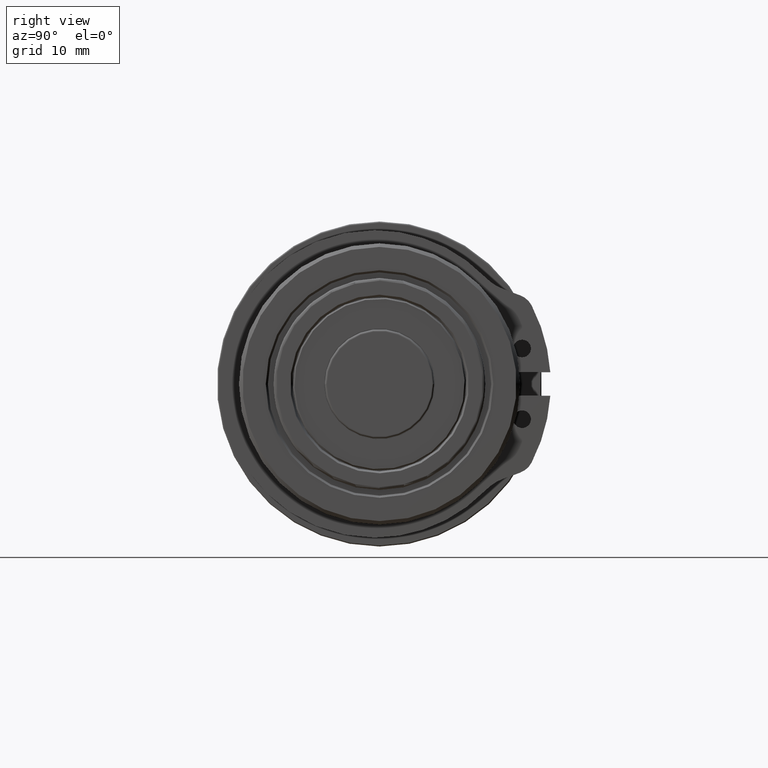
[diagram: clean part render]
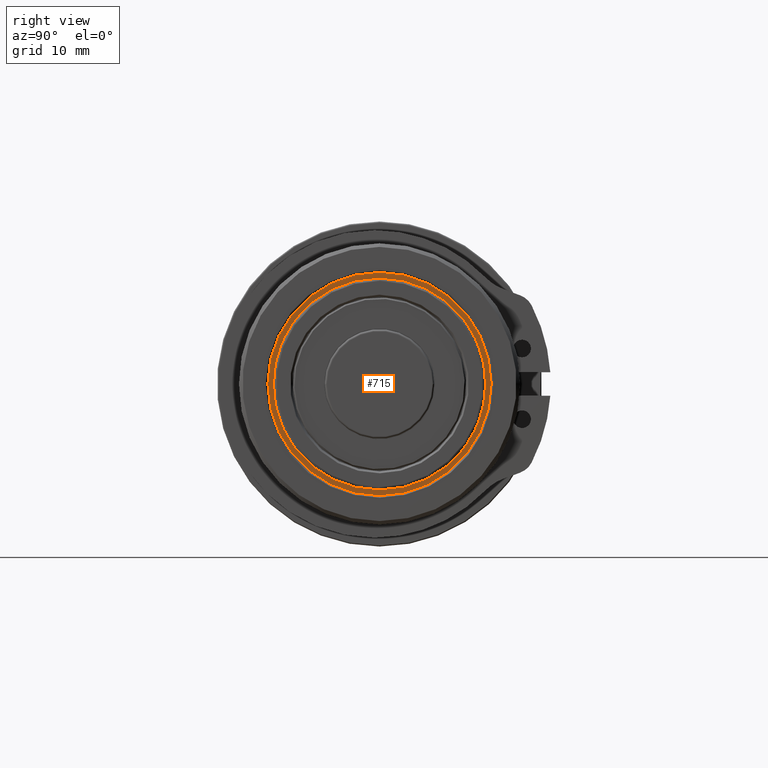
[diagram: same view with one face highlighted and labeled with its STEP entity id]
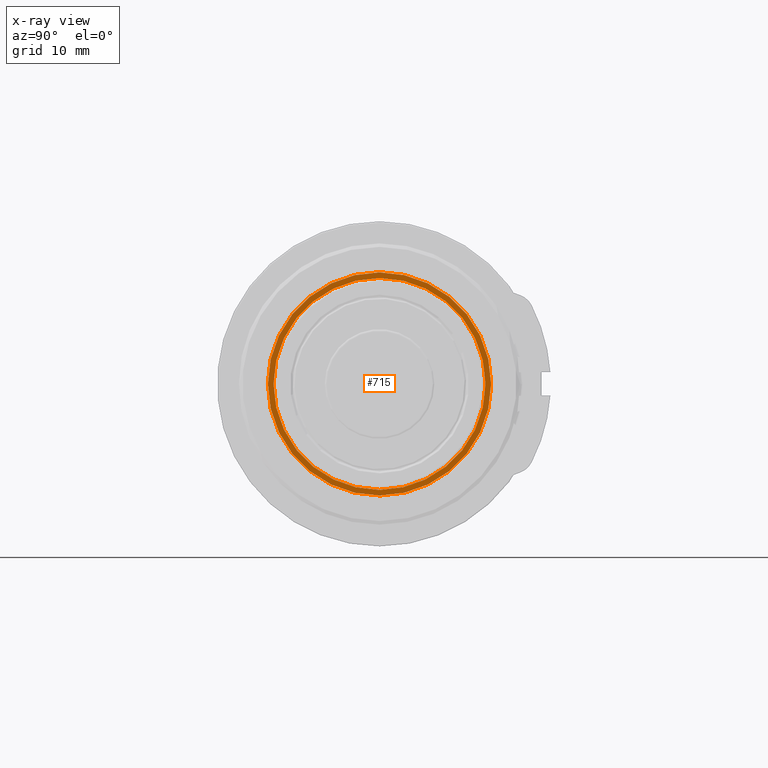
[diagram: x-ray of the same camera — body ghosted, the highlighted face saturated]
A machine part, right view. The second image highlights one B-rep face of the part: STEP entity #715.
The next image is the same camera in x-ray: the body ghosted, the highlighted face saturated — about 0% of this face is hidden behind the body in this view.
In plain terms, the highlighted planar face has unit normal (-1, 0, -0).
Its self-contained STEP definition (entity closure, byte-faithful):
#33 = PLANE ( 'NONE',  #2821 ) ;
#112 = CARTESIAN_POINT ( 'NONE',  ( 51.79999999999999700, 18.06138526289621600, 0.0000000000000000000 ) ) ;
#249 = DIRECTION ( 'NONE',  ( -0.0000000000000000000, 0.0000000000000000000, 1.000000000000000000 ) ) ;
#286 = DIRECTION ( 'NONE',  ( -1.000000000000000000, 0.0000000000000000000, -0.0000000000000000000 ) ) ;
#353 = EDGE_LOOP ( 'NONE', ( #1132, #1195 ) ) ;
#605 = EDGE_LOOP ( 'NONE', ( #1136, #1297 ) ) ;
#715 = ADVANCED_FACE ( 'NONE', ( #3314, #3170 ), #33, .F. ) ;
#909 = VERTEX_POINT ( 'NONE', #4328 ) ;
#928 = VERTEX_POINT ( 'NONE', #3997 ) ;
#953 = VERTEX_POINT ( 'NONE', #4007 ) ;
#961 = VERTEX_POINT ( 'NONE', #4023 ) ;
#1132 = ORIENTED_EDGE ( 'NONE', *, *, #2139, .F. ) ;
#1136 = ORIENTED_EDGE ( 'NONE', *, *, #2001, .F. ) ;
#1195 = ORIENTED_EDGE ( 'NONE', *, *, #1993, .F. ) ;
#1297 = ORIENTED_EDGE ( 'NONE', *, *, #2075, .F. ) ;
#1510 = DIRECTION ( 'NONE',  ( -1.000000000000000000, -0.0000000000000000000, -0.0000000000000000000 ) ) ;
#1519 = DIRECTION ( 'NONE',  ( 1.000000000000000000, 0.0000000000000000000, 0.0000000000000000000 ) ) ;
#1536 = CARTESIAN_POINT ( 'NONE',  ( 51.79999999999999700, 4.470713197007353100E-016, 2.582013848347336000E-015 ) ) ;
#1553 = DIRECTION ( 'NONE',  ( 0.0000000000000000000, 0.0000000000000000000, 1.000000000000000000 ) ) ;
#1569 = CARTESIAN_POINT ( 'NONE',  ( 51.79999999999999700, 0.0000000000000000000, 0.0000000000000000000 ) ) ;
#1692 = DIRECTION ( 'NONE',  ( 0.0000000000000000000, 0.0000000000000000000, 1.000000000000000000 ) ) ;
#1786 = CIRCLE ( 'NONE', #2916, 15.80000000000000100 ) ;
#1803 = CIRCLE ( 'NONE', #2650, 14.99999999999998900 ) ;
#1993 = EDGE_CURVE ( 'NONE', #928, #961, #3064, .T. ) ;
#2001 = EDGE_CURVE ( 'NONE', #953, #909, #3125, .T. ) ;
#2075 = EDGE_CURVE ( 'NONE', #909, #953, #1786, .T. ) ;
#2139 = EDGE_CURVE ( 'NONE', #961, #928, #1803, .T. ) ;
#2327 = CARTESIAN_POINT ( 'NONE',  ( 51.79999999999999700, 4.470713197007353100E-016, 2.582013848347336000E-015 ) ) ;
#2402 = DIRECTION ( 'NONE',  ( -1.000000000000000000, -0.0000000000000000000, -0.0000000000000000000 ) ) ;
#2479 = CARTESIAN_POINT ( 'NONE',  ( 51.79999999999999700, 0.0000000000000000000, 0.0000000000000000000 ) ) ;
#2481 = DIRECTION ( 'NONE',  ( 1.000000000000000000, 0.0000000000000000000, 0.0000000000000000000 ) ) ;
#2484 = DIRECTION ( 'NONE',  ( 0.0000000000000000000, 0.0000000000000000000, 1.000000000000000000 ) ) ;
#2535 = DIRECTION ( 'NONE',  ( 0.0000000000000000000, 0.0000000000000000000, 1.000000000000000000 ) ) ;
#2650 = AXIS2_PLACEMENT_3D ( 'NONE', #2479, #2481, #2535 ) ;
#2675 = AXIS2_PLACEMENT_3D ( 'NONE', #1536, #1510, #1692 ) ;
#2772 = AXIS2_PLACEMENT_3D ( 'NONE', #1569, #1519, #1553 ) ;
#2821 = AXIS2_PLACEMENT_3D ( 'NONE', #112, #286, #249 ) ;
#2916 = AXIS2_PLACEMENT_3D ( 'NONE', #2327, #2402, #2484 ) ;
#3064 = CIRCLE ( 'NONE', #2772, 14.99999999999998900 ) ;
#3125 = CIRCLE ( 'NONE', #2675, 15.80000000000000100 ) ;
#3170 = FACE_BOUND ( 'NONE', #353, .T. ) ;
#3314 = FACE_OUTER_BOUND ( 'NONE', #605, .T. ) ;
#3997 = CARTESIAN_POINT ( 'NONE',  ( 51.79999999999999700, 1.836970198721028400E-015, 14.99999999999998900 ) ) ;
#4007 = CARTESIAN_POINT ( 'NONE',  ( 51.79999999999999700, 4.470713197007353100E-016, 15.80000000000000400 ) ) ;
#4023 = CARTESIAN_POINT ( 'NONE',  ( 51.79999999999999700, 0.0000000000000000000, -14.99999999999998900 ) ) ;
#4328 = CARTESIAN_POINT ( 'NONE',  ( 51.79999999999999700, 2.382013262353553500E-015, -15.79999999999999900 ) ) ;